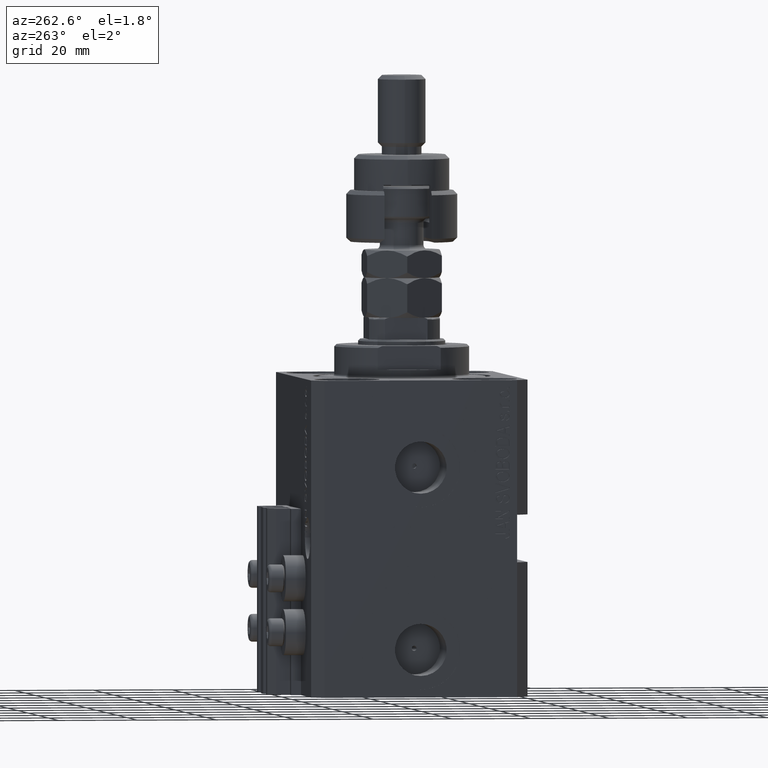
[diagram: clean part render]
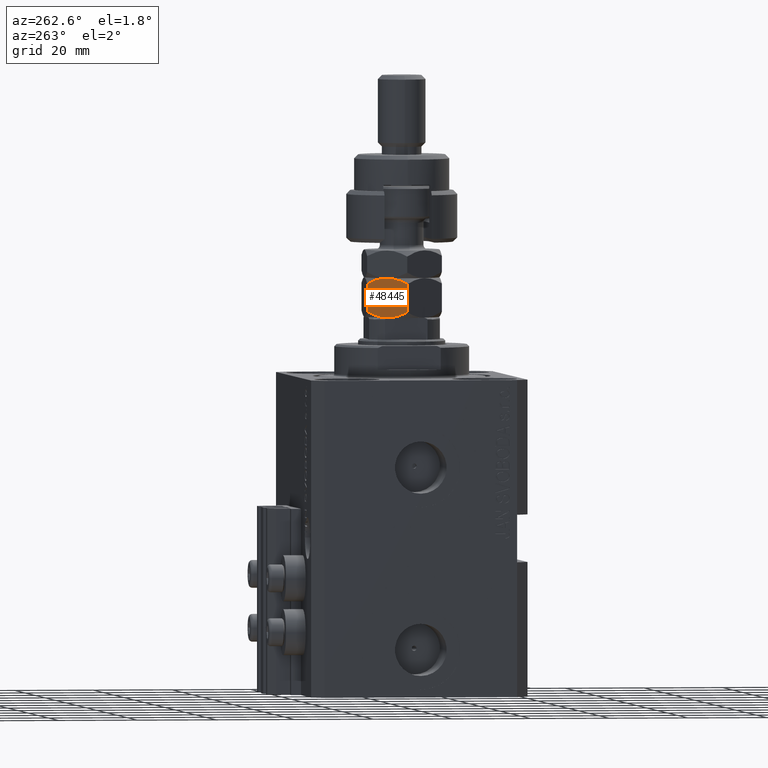
[diagram: same view with one face highlighted and labeled with its STEP entity id]
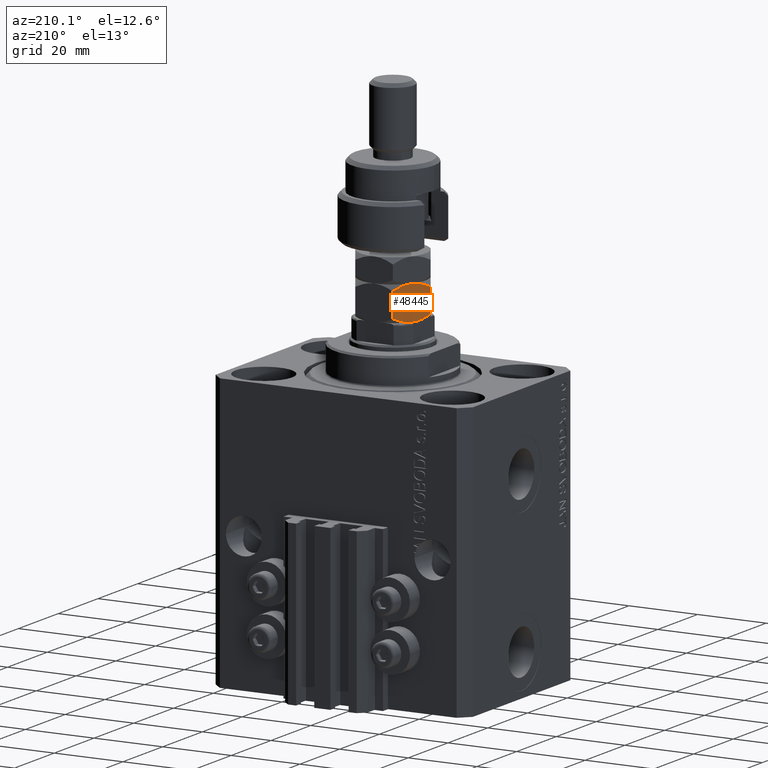
[diagram: same view with one face highlighted and labeled with its STEP entity id]
A machine part, auxiliary view. The second image highlights one B-rep face of the part: STEP entity #48445.
A second angle (auxiliary view) of the same face is appended — the face is thin or edge-on in the first view.
In plain terms, the highlighted planar face has unit normal (0.866, -0.5, 0).
Its self-contained STEP definition (entity closure, byte-faithful):
#857 = DIRECTION ( 'NONE',  ( -0.000000000000000000, -0.000000000000000000, -1.000000000000000000 ) ) ;
#1871 = VECTOR ( 'NONE', #857, 1000.000000000000000 ) ;
#2152 = EDGE_CURVE ( 'NONE', #25016, #9248, #32281, .T. ) ;
#4948 = DIRECTION ( 'NONE',  ( -0.000000000000000000, -0.000000000000000000, -1.000000000000000000 ) ) ;
#5012 = FACE_OUTER_BOUND ( 'NONE', #37381, .T. ) ;
#5060 = B_SPLINE_CURVE_WITH_KNOTS ( 'NONE', 3,
 ( #33655, #10803, #12033, #15552, #39129, #27345, #8515, #42640, #26593, #34867 ),
 .UNSPECIFIED., .F., .F.,
 ( 4, 2, 2, 2, 4 ),
 ( 0.01710995699817097898, 0.01854089553334494628, 0.01997183406851891010, 0.02140277260369287740, 0.02283371113886684470 ),
 .UNSPECIFIED. ) ;
#5076 = CARTESIAN_POINT ( 'NONE',  ( -9.500000000000001776, -0.9479236874768413035, 9.964222692415534155 ) ) ;
#5650 = CARTESIAN_POINT ( 'NONE',  ( -9.499999999999998224, -5.056260213613243515, 1.255371442758782985 ) ) ;
#5983 = VERTEX_POINT ( 'NONE', #36863 ) ;
#8300 = VERTEX_POINT ( 'NONE', #42457 ) ;
#8427 = ORIENTED_EDGE ( 'NONE', *, *, #2152, .T. ) ;
#8470 = EDGE_CURVE ( 'NONE', #8300, #5983, #47269, .T. ) ;
#8515 = CARTESIAN_POINT ( 'NONE',  ( -9.500000000000001776, 1.900126426538962798, 9.823293823960822735 ) ) ;
#8915 = ORIENTED_EDGE ( 'NONE', *, *, #41540, .F. ) ;
#9066 = CARTESIAN_POINT ( 'NONE',  ( -9.500000000000001776, -2.364456443984731315, 9.720211206247848068 ) ) ;
#9248 = VERTEX_POINT ( 'NONE', #17932 ) ;
#10148 = CARTESIAN_POINT ( 'NONE',  ( -9.500000000000000000, 0.000000000000000000, 0.000000000000000000 ) ) ;
#10803 = CARTESIAN_POINT ( 'NONE',  ( -9.499999999999998224, 5.056260213613249732, 8.744628557241215461 ) ) ;
#11047 = CARTESIAN_POINT ( 'NONE',  ( -9.499999999999998224, 1.891038971533059110, 0.1751495044996551897 ) ) ;
#12033 = CARTESIAN_POINT ( 'NONE',  ( -9.499999999999998224, 4.619321229330174639, 8.944243860401860147 ) ) ;
#13919 = CARTESIAN_POINT ( 'NONE',  ( -9.500000000000001776, -1.900126426538963242, 0.1767061760391781533 ) ) ;
#14305 = EDGE_CURVE ( 'NONE', #38118, #20308, #35243, .T. ) ;
#14409 = CARTESIAN_POINT ( 'NONE',  ( -9.500000000000001776, -0.4729811324588428234, 5.421010862427519705E-17 ) ) ;
#14584 = CARTESIAN_POINT ( 'NONE',  ( -9.500000000000001776, 2.364456443984731759, 0.2797887937521522095 ) ) ;
#15552 = CARTESIAN_POINT ( 'NONE',  ( -9.499999999999994671, 3.734178907538126868, 9.300492601481865407 ) ) ;
#17250 = ORIENTED_EDGE ( 'NONE', *, *, #20660, .F. ) ;
#17932 = CARTESIAN_POINT ( 'NONE',  ( -9.500000000000000000, 5.484827557301450440, 1.469655114602887114 ) ) ;
#20235 = CARTESIAN_POINT ( 'NONE',  ( -9.500000000000000000, 5.484827557301449552, 10.00000000000000000 ) ) ;
#20308 = VERTEX_POINT ( 'NONE', #49628 ) ;
#20660 = EDGE_CURVE ( 'NONE', #5983, #38118, #26967, .T. ) ;
#20792 = PLANE ( 'NONE',  #36720 ) ;
#20861 = CARTESIAN_POINT ( 'NONE',  ( -9.500000000000003553, -3.751526451643773630, 9.324617500212356802 ) ) ;
#20934 = CARTESIAN_POINT ( 'NONE',  ( -9.500000000000001776, -2.368438208135733358, 0.2809335855646786784 ) ) ;
#21355 = VECTOR ( 'NONE', #4948, 1000.000000000000000 ) ;
#21431 = CARTESIAN_POINT ( 'NONE',  ( -9.500000000000000000, -3.734178907538126868, 0.6995073985181277099 ) ) ;
#21981 = B_SPLINE_CURVE_WITH_KNOTS ( 'NONE', 3,
 ( #33904, #29900, #41428, #11047, #14584, #30869, #22833, #45203 ),
 .UNSPECIFIED., .F., .F.,
 ( 4, 2, 2, 4 ),
 ( 0.02283371113886683776, 0.02427012866641926891, 0.02570654619397170007, 0.02857938124907656238 ),
 .UNSPECIFIED. ) ;
#22833 = CARTESIAN_POINT ( 'NONE',  ( -9.500000000000000000, 4.631112555686345722, 1.042797613795336753 ) ) ;
#23488 = ORIENTED_EDGE ( 'NONE', *, *, #49620, .F. ) ;
#23771 = ORIENTED_EDGE ( 'NONE', *, *, #8470, .F. ) ;
#24355 = CARTESIAN_POINT ( 'NONE',  ( -9.500000000000001776, -4.631112555686342169, 8.957202386204667022 ) ) ;
#25016 = VERTEX_POINT ( 'NONE', #39009 ) ;
#26593 = CARTESIAN_POINT ( 'NONE',  ( -9.500000000000003553, 0.4729811324588416022, 10.00000000000000178 ) ) ;
#26967 = LINE ( 'NONE', #42754, #1871 ) ;
#27345 = CARTESIAN_POINT ( 'NONE',  ( -9.500000000000003553, 2.368438208135732914, 9.719066414435319601 ) ) ;
#29900 = CARTESIAN_POINT ( 'NONE',  ( -9.500000000000000000, 0.4747921536566064860, -5.336307567702092136E-17 ) ) ;
#30869 = CARTESIAN_POINT ( 'NONE',  ( -9.500000000000001776, 3.751526451643775406, 0.6753824997876441971 ) ) ;
#32281 = LINE ( 'NONE', #20235, #21355 ) ;
#32559 = ORIENTED_EDGE ( 'NONE', *, *, #14305, .F. ) ;
#33243 = CARTESIAN_POINT ( 'NONE',  ( -9.500000000000001776, -4.619321229330175527, 1.055756139598138077 ) ) ;
#33655 = CARTESIAN_POINT ( 'NONE',  ( -9.500000000000000000, 5.484827557301450440, 8.530344885397113330 ) ) ;
#33904 = CARTESIAN_POINT ( 'NONE',  ( -9.500000000000000000, 0.000000000000000000, 0.000000000000000000 ) ) ;
#34867 = CARTESIAN_POINT ( 'NONE',  ( -9.499999999999996447, 0.000000000000000000, 10.00000000000000000 ) ) ;
#35243 = B_SPLINE_CURVE_WITH_KNOTS ( 'NONE', 3,
 ( #47796, #5650, #33243, #21431, #48797, #20934, #13919, #44516, #14409, #10148 ),
 .UNSPECIFIED., .F., .F.,
 ( 4, 2, 2, 2, 4 ),
 ( 0.01710995699817097551, 0.01854089553334493934, 0.01997183406851890664, 0.02140277260369287393, 0.02283371113886683776 ),
 .UNSPECIFIED. ) ;
#35597 = CARTESIAN_POINT ( 'NONE',  ( -9.500000000000000000, 5.484827557301449552, 10.00000000000000000 ) ) ;
#36094 = DIRECTION ( 'NONE',  ( -0.000000000000000000, 0.000000000000000000, -1.000000000000000000 ) ) ;
#36165 = CARTESIAN_POINT ( 'NONE',  ( -9.500000000000000000, -5.484827557301445999, 8.530344885397115107 ) ) ;
#36720 = AXIS2_PLACEMENT_3D ( 'NONE', #35597, #47398, #36094 ) ;
#36863 = CARTESIAN_POINT ( 'NONE',  ( -9.500000000000000000, -5.484827557301445999, 8.530344885397115107 ) ) ;
#37381 = EDGE_LOOP ( 'NONE', ( #32559, #17250, #23771, #8915, #8427, #23488 ) ) ;
#38118 = VERTEX_POINT ( 'NONE', #39327 ) ;
#39009 = CARTESIAN_POINT ( 'NONE',  ( -9.500000000000000000, 5.484827557301450440, 8.530344885397113330 ) ) ;
#39129 = CARTESIAN_POINT ( 'NONE',  ( -9.500000000000000000, 3.284755346118642727, 9.457750254881881702 ) ) ;
#39327 = CARTESIAN_POINT ( 'NONE',  ( -9.500000000000000000, -5.484827557301445999, 1.469655114602884893 ) ) ;
#39939 = CARTESIAN_POINT ( 'NONE',  ( -9.499999999999998224, -0.4747921536566078182, 9.999999999999998224 ) ) ;
#41428 = CARTESIAN_POINT ( 'NONE',  ( -9.500000000000000000, 0.9479236874768390830, 0.03577730758446397152 ) ) ;
#41540 = EDGE_CURVE ( 'NONE', #25016, #8300, #5060, .T. ) ;
#42457 = CARTESIAN_POINT ( 'NONE',  ( -9.499999999999996447, 0.000000000000000000, 10.00000000000000000 ) ) ;
#42640 = CARTESIAN_POINT ( 'NONE',  ( -9.500000000000000000, 0.9476109094485472006, 9.964480694987347675 ) ) ;
#42754 = CARTESIAN_POINT ( 'NONE',  ( -9.500000000000000000, -5.484827557301445999, 10.00000000000000000 ) ) ;
#43935 = CARTESIAN_POINT ( 'NONE',  ( -9.500000000000000000, -1.891038971533061108, 9.824850495500340841 ) ) ;
#44516 = CARTESIAN_POINT ( 'NONE',  ( -9.500000000000001776, -0.9476109094485490880, 0.03551930501265149198 ) ) ;
#45203 = CARTESIAN_POINT ( 'NONE',  ( -9.500000000000000000, 5.484827557301450440, 1.469655114602887114 ) ) ;
#46970 = CARTESIAN_POINT ( 'NONE',  ( -9.499999999999996447, 0.000000000000000000, 10.00000000000000000 ) ) ;
#47269 = B_SPLINE_CURVE_WITH_KNOTS ( 'NONE', 3,
 ( #46970, #39939, #5076, #43935, #9066, #20861, #24355, #36165 ),
 .UNSPECIFIED., .F., .F.,
 ( 4, 2, 2, 4 ),
 ( 0.02283371113886684470, 0.02427012866641927585, 0.02570654619397170354, 0.02857938124907656238 ),
 .UNSPECIFIED. ) ;
#47398 = DIRECTION ( 'NONE',  ( 1.000000000000000000, 0.000000000000000000, -0.000000000000000000 ) ) ;
#47796 = CARTESIAN_POINT ( 'NONE',  ( -9.500000000000000000, -5.484827557301445999, 1.469655114602884893 ) ) ;
#48445 = ADVANCED_FACE ( 'NONE', ( #5012 ), #20792, .F. ) ;
#48797 = CARTESIAN_POINT ( 'NONE',  ( -9.500000000000001776, -3.284755346118642727, 0.5422497451181170769 ) ) ;
#49620 = EDGE_CURVE ( 'NONE', #20308, #9248, #21981, .T. ) ;
#49628 = CARTESIAN_POINT ( 'NONE',  ( -9.500000000000000000, 0.000000000000000000, 0.000000000000000000 ) ) ;